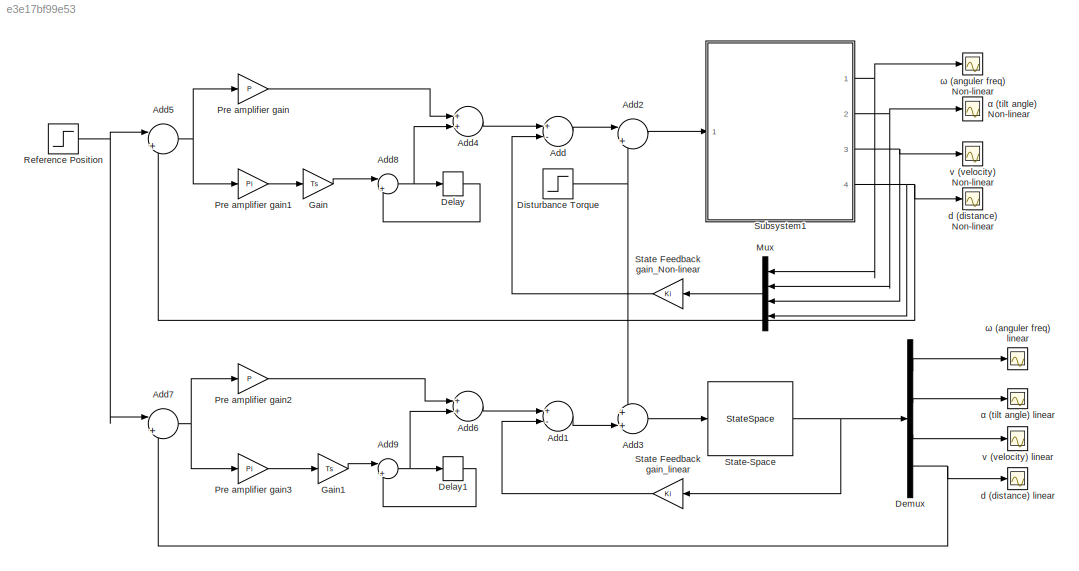
MODEL slx_e3e17bf99e53
KIND model
CONFIG AbsTol = auto
CONFIG EnableMultiTasking = off
CONFIG FixedStep = auto
CONFIG MaxStep = auto
CONFIG MinStep = auto
CONFIG RelTol = 1e-3
CONFIG SampleTimeConstraint = Unconstrained
CONFIG Solver = VariableStepAuto
CONFIG SolverName = VariableStepAuto
CONFIG StartTime = 0.0
CONFIG StopTime = 30
BLOCK [Scope]       ω (anguler freq) Non-linear
  Floating = off
  NumInputPorts = 1
  Ports = [1]
  ScopeSpecificationString = Simulink.scopes.TimeScopeBlockCfg('CurrentConfiguration', extmgr.ConfigurationSet(extmgr.Configuration('Core','General UI',true,'FigureColor',[1 1 1],'ShowMainToolbar',false,'ShowStatusbar',false),extmgr.Configuration('Core','Source UI',true),extmgr.Configuration('Sources','WiredSimulink',true,'DataLoggingVariableName','ScopeData1'),extmgr.Configuration('Visuals','Time Domain',true,'SerializedDisp...<+1618ch>
BLOCK [Sum] Add
  InputSameDT = off
  Inputs = +-
  OutDataTypeStr = Inherit: Inherit via internal rule
  Ports = [2, 1]
  SaturateOnIntegerOverflow = off
BLOCK [Sum] Add1
  InputSameDT = off
  Inputs = +-
  OutDataTypeStr = Inherit: Inherit via internal rule
  Ports = [2, 1]
  SaturateOnIntegerOverflow = off
BLOCK [Sum] Add2
  IconShape = round
  InputSameDT = off
  Inputs = |++
  OutDataTypeStr = Inherit: Inherit via internal rule
  Ports = [2, 1]
  SaturateOnIntegerOverflow = off
BLOCK [Sum] Add3
  IconShape = round
  InputSameDT = off
  Inputs = ++|
  OutDataTypeStr = Inherit: Inherit via internal rule
  Ports = [2, 1]
  SaturateOnIntegerOverflow = off
BLOCK [Sum] Add4
  InputSameDT = off
  OutDataTypeStr = Inherit: Inherit via internal rule
  Ports = [2, 1]
  SaturateOnIntegerOverflow = off
BLOCK [Sum] Add5
  IconShape = round
  InputSameDT = off
  Inputs = |+-
  OutDataTypeStr = Inherit: Inherit via internal rule
  Ports = [2, 1]
  SaturateOnIntegerOverflow = off
BLOCK [Sum] Add6
  InputSameDT = off
  OutDataTypeStr = Inherit: Inherit via internal rule
  Ports = [2, 1]
  SaturateOnIntegerOverflow = off
BLOCK [Sum] Add7
  IconShape = round
  InputSameDT = off
  Inputs = |+-
  OutDataTypeStr = Inherit: Inherit via internal rule
  Ports = [2, 1]
  SaturateOnIntegerOverflow = off
BLOCK [Sum] Add8
  IconShape = round
  InputSameDT = off
  Inputs = |++
  OutDataTypeStr = Inherit: Inherit via internal rule
  Ports = [2, 1]
  SaturateOnIntegerOverflow = off
BLOCK [Sum] Add9
  IconShape = round
  InputSameDT = off
  Inputs = |++
  OutDataTypeStr = Inherit: Inherit via internal rule
  Ports = [2, 1]
  SaturateOnIntegerOverflow = off
BLOCK [Delay] Delay
  DelayLength = 1
  InputPortMap = u0
  Ports = [1, 1]
  SampleTime = Ts
BLOCK [Delay] Delay1
  DelayLength = 1
  InputPortMap = u0
  Ports = [1, 1]
  SampleTime = Ts
BLOCK [Demux] Demux
  DisplayOption = bar
  Ports = [1, 4]
BLOCK [Step] Disturbance Torque
  After = 0.1
  SampleTime = 0
  Time = 15
BLOCK [Gain] Gain
  Gain = Ts
  OutDataTypeStr = Inherit: Inherit via internal rule
  ParamDataTypeStr = Inherit: Inherit via internal rule
  SaturateOnIntegerOverflow = off
BLOCK [Gain] Gain1
  Gain = Ts
  OutDataTypeStr = Inherit: Inherit via internal rule
  ParamDataTypeStr = Inherit: Inherit via internal rule
  SaturateOnIntegerOverflow = off
BLOCK [Mux] Mux
  DisplayOption = bar
  Ports = [4, 1]
BLOCK [Gain] Pre amplifier gain
  Gain = P
  OutDataTypeStr = Inherit: Inherit via internal rule
  ParamDataTypeStr = Inherit: Inherit via internal rule
  SaturateOnIntegerOverflow = off
BLOCK [Gain] Pre amplifier gain1
  Gain = Pi
  OutDataTypeStr = Inherit: Inherit via internal rule
  ParamDataTypeStr = Inherit: Inherit via internal rule
  SaturateOnIntegerOverflow = off
BLOCK [Gain] Pre amplifier gain2
  Gain = P
  OutDataTypeStr = Inherit: Inherit via internal rule
  ParamDataTypeStr = Inherit: Inherit via internal rule
  SaturateOnIntegerOverflow = off
BLOCK [Gain] Pre amplifier gain3
  Gain = Pi
  OutDataTypeStr = Inherit: Inherit via internal rule
  ParamDataTypeStr = Inherit: Inherit via internal rule
  SaturateOnIntegerOverflow = off
BLOCK [Step] Reference Position
  SampleTime = 0
  Time = 0
BLOCK [Gain] State Feedback gain_Non-linear
  Gain = Ki
  Multiplication = Matrix(K*u) (u vector)
  OutDataTypeStr = Inherit: Inherit via internal rule
  ParamDataTypeStr = Inherit: Inherit via internal rule
  SaturateOnIntegerOverflow = off
BLOCK [Gain] State Feedback gain_linear
  Gain = Ki
  Multiplication = Matrix(K*u) (u vector)
  OutDataTypeStr = Inherit: Inherit via internal rule
  ParamDataTypeStr = Inherit: Inherit via internal rule
  SaturateOnIntegerOverflow = off
BLOCK [StateSpace] State-Space
  A = A
  B = B
  C = C
  D = D
  InitialCondition = 0
  Ports = [1, 1]
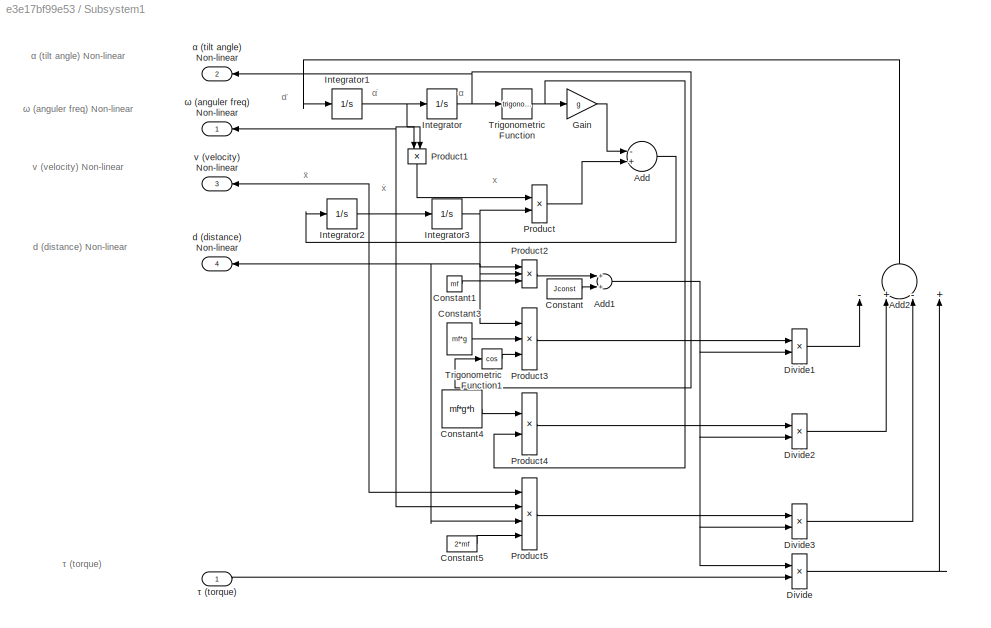
BLOCK [SubSystem] Subsystem1
  Ports = [1, 4]
  RequestExecContextInheritance = off
BLOCK [Sum] Subsystem1/Add
  InputSameDT = off
  Inputs = -+
  OutDataTypeStr = Inherit: Inherit via internal rule
  Ports = [2, 1]
  SaturateOnIntegerOverflow = off
BLOCK [Sum] Subsystem1/Add1
  InputSameDT = off
  OutDataTypeStr = Inherit: Inherit via internal rule
  Ports = [2, 1]
  SaturateOnIntegerOverflow = off
BLOCK [Sum] Subsystem1/Add2
  InputSameDT = off
  Inputs = -+-+
  OutDataTypeStr = Inherit: Inherit via internal rule
  Ports = [4, 1]
  SaturateOnIntegerOverflow = off
BLOCK [Constant] Subsystem1/Constant
  Value = Jconst
BLOCK [Constant] Subsystem1/Constant1
  Value = mf
BLOCK [Constant] Subsystem1/Constant3
  Value = mf*g
BLOCK [Constant] Subsystem1/Constant4
  Value = mf*g*h
BLOCK [Constant] Subsystem1/Constant5
  Value = 2*mf
BLOCK [Product] Subsystem1/Divide
  InputSameDT = off
  Inputs = /*
  OutDataTypeStr = Inherit: Inherit via internal rule
  Ports = [2, 1]
  RndMeth = Floor
  SaturateOnIntegerOverflow = off
BLOCK [Product] Subsystem1/Divide1
  InputSameDT = off
  Inputs = */
  OutDataTypeStr = Inherit: Inherit via internal rule
  Ports = [2, 1]
  RndMeth = Floor
  SaturateOnIntegerOverflow = off
BLOCK [Product] Subsystem1/Divide2
  InputSameDT = off
  Inputs = */
  OutDataTypeStr = Inherit: Inherit via internal rule
  Ports = [2, 1]
  RndMeth = Floor
  SaturateOnIntegerOverflow = off
BLOCK [Product] Subsystem1/Divide3
  InputSameDT = off
  Inputs = */
  OutDataTypeStr = Inherit: Inherit via internal rule
  Ports = [2, 1]
  RndMeth = Floor
  SaturateOnIntegerOverflow = off
BLOCK [Gain] Subsystem1/Gain
  Gain = g
  OutDataTypeStr = Inherit: Inherit via internal rule
  ParamDataTypeStr = Inherit: Inherit via internal rule
  SaturateOnIntegerOverflow = off
BLOCK [Integrator] Subsystem1/Integrator
  Ports = [1, 1]
BLOCK [Integrator] Subsystem1/Integrator1
  Ports = [1, 1]
BLOCK [Integrator] Subsystem1/Integrator2
  Ports = [1, 1]
BLOCK [Integrator] Subsystem1/Integrator3
  Ports = [1, 1]
BLOCK [Product] Subsystem1/Product
  InputSameDT = off
  OutDataTypeStr = Inherit: Inherit via internal rule
  Ports = [2, 1]
  RndMeth = Floor
  SaturateOnIntegerOverflow = off
BLOCK [Product] Subsystem1/Product1
  InputSameDT = off
  OutDataTypeStr = Inherit: Inherit via internal rule
  Ports = [2, 1]
  RndMeth = Floor
  SaturateOnIntegerOverflow = off
BLOCK [Product] Subsystem1/Product2
  InputSameDT = off
  Inputs = 3
  OutDataTypeStr = Inherit: Inherit via internal rule
  Ports = [3, 1]
  RndMeth = Floor
  SaturateOnIntegerOverflow = off
BLOCK [Product] Subsystem1/Product3
  InputSameDT = off
  Inputs = 3
  OutDataTypeStr = Inherit: Inherit via internal rule
  Ports = [3, 1]
  RndMeth = Floor
  SaturateOnIntegerOverflow = off
BLOCK [Product] Subsystem1/Product4
  InputSameDT = off
  OutDataTypeStr = Inherit: Inherit via internal rule
  Ports = [2, 1]
  RndMeth = Floor
  SaturateOnIntegerOverflow = off
BLOCK [Product] Subsystem1/Product5
  InputSameDT = off
  Inputs = 4
  OutDataTypeStr = Inherit: Inherit via internal rule
  Ports = [4, 1]
  RndMeth = Floor
  SaturateOnIntegerOverflow = off
BLOCK [Trigonometry] Subsystem1/Trigonometric Function
  Ports = [1, 1]
BLOCK [Trigonometry] Subsystem1/Trigonometric Function1
  Operator = cos
  Ports = [1, 1]
BLOCK [Outport] Subsystem1/d (distance) Non-linear
  IconDisplay = Port number
  Port = 4
BLOCK [Outport] Subsystem1/v (velocity) Non-linear
  IconDisplay = Port number
  Port = 3
BLOCK [Outport] Subsystem1/α (tilt angle) Non-linear
  IconDisplay = Port number
  Port = 2
BLOCK [Inport] Subsystem1/τ (torque)
  IconDisplay = Port number
BLOCK [Outport] Subsystem1/ω (anguler freq) Non-linear
  IconDisplay = Port number
BLOCK [Scope] d (distance) Non-linear
  Floating = off
  NumInputPorts = 1
  Ports = [1]
  ScopeSpecificationString = Simulink.scopes.TimeScopeBlockCfg('CurrentConfiguration', extmgr.ConfigurationSet(extmgr.Configuration('Core','General UI',true,'FigureColor',[1 1 1],'ShowMainToolbar',false,'ShowStatusbar',false),extmgr.Configuration('Core','Source UI',true),extmgr.Configuration('Sources','WiredSimulink',true,'DataLoggingVariableName','ScopeData3'),extmgr.Configuration('Visuals','Time Domain',true,'SerializedDisp...<+1611ch>
BLOCK [Scope] d (distance) linear
  Floating = off
  NumInputPorts = 1
  Ports = [1]
  ScopeSpecificationString = Simulink.scopes.TimeScopeBlockCfg('CurrentConfiguration', extmgr.ConfigurationSet(extmgr.Configuration('Core','General UI',true,'FigureColor',[1 1 1],'ShowMainToolbar',false,'ShowStatusbar',false),extmgr.Configuration('Core','Source UI',true),extmgr.Configuration('Sources','WiredSimulink',true,'DataLoggingVariableName','ScopeData2'),extmgr.Configuration('Visuals','Time Domain',true,'SerializedDisp...<+1607ch>
BLOCK [Scope] v (velocity) Non-linear
  Floating = off
  NumInputPorts = 1
  Ports = [1]
  ScopeSpecificationString = Simulink.scopes.TimeScopeBlockCfg('CurrentConfiguration', extmgr.ConfigurationSet(extmgr.Configuration('Core','General UI',true,'FigureColor',[1 1 1],'ShowMainToolbar',false,'ShowStatusbar',false),extmgr.Configuration('Core','Source UI',true),extmgr.Configuration('Sources','WiredSimulink',true,'DataLoggingVariableName','ScopeData5'),extmgr.Configuration('Visuals','Time Domain',true,'SerializedDisp...<+1616ch>
BLOCK [Scope] v (velocity) linear
  Floating = off
  NumInputPorts = 1
  Ports = [1]
  ScopeSpecificationString = Simulink.scopes.TimeScopeBlockCfg('CurrentConfiguration', extmgr.ConfigurationSet(extmgr.Configuration('Core','General UI',true,'FigureColor',[1 1 1],'ShowMainToolbar',false,'ShowStatusbar',false),extmgr.Configuration('Core','Source UI',true),extmgr.Configuration('Sources','WiredSimulink',true,'DataLoggingVariableName','ScopeData4'),extmgr.Configuration('Visuals','Time Domain',true,'SerializedDisp...<+1620ch>
BLOCK [Scope] α (tilt angle) Non-linear
  Floating = off
  NumInputPorts = 1
  Ports = [1]
  ScopeSpecificationString = Simulink.scopes.TimeScopeBlockCfg('CurrentConfiguration', extmgr.ConfigurationSet(extmgr.Configuration('Core','General UI',true,'FigureColor',[1 1 1],'ShowMainToolbar',false,'ShowStatusbar',false),extmgr.Configuration('Core','Source UI',true),extmgr.Configuration('Sources','WiredSimulink',true,'DataLoggingVariableName','ScopeData7'),extmgr.Configuration('Visuals','Time Domain',true,'SerializedDisp...<+1655ch>
BLOCK [Scope] α (tilt angle) linear
  Floating = off
  NumInputPorts = 1
  Ports = [1]
  ScopeSpecificationString = Simulink.scopes.TimeScopeBlockCfg('CurrentConfiguration', extmgr.ConfigurationSet(extmgr.Configuration('Core','General UI',true,'FigureColor',[1 1 1],'ShowMainToolbar',false,'ShowStatusbar',false),extmgr.Configuration('Core','Source UI',true),extmgr.Configuration('Sources','WiredSimulink',true,'DataLoggingVariableName','ScopeData6'),extmgr.Configuration('Visuals','Time Domain',true,'SerializedDisp...<+1661ch>
BLOCK [Scope] ω (anguler freq) linear
  Floating = off
  NumInputPorts = 1
  Ports = [1]
  ScopeSpecificationString = Simulink.scopes.TimeScopeBlockCfg('CurrentConfiguration', extmgr.ConfigurationSet(extmgr.Configuration('Core','General UI',true,'FigureColor',[1 1 1],'ShowMainToolbar',false,'ShowStatusbar',false),extmgr.Configuration('Core','Source UI',true),extmgr.Configuration('Sources','WiredSimulink',true),extmgr.Configuration('Visuals','Time Domain',true,'SerializedDisplays',{struct('MinYLimReal','-8.12595',...<+1580ch>
ANNOTATION Subsystem1: α
ANNOTATION Subsystem1: α̇
ANNOTATION Subsystem1: α̈
ANNOTATION Subsystem1: τ (t orque)
ANNOTATION Subsystem1: α (tilt angle) Non-linear
ANNOTATION Subsystem1: ω (anguler freq) Non-linear
ANNOTATION Subsystem1: ẋ
ANNOTATION Subsystem1: ẍ
ANNOTATION Subsystem1: d (distance) Non-linear
ANNOTATION Subsystem1: v (velocity) Non-linear
ANNOTATION Subsystem1: x
LINE Add1:1 -> Add3:2
LINE Add2:1 -> Subsystem1:1
LINE Add3:1 -> State-Space:1
LINE Add4:1 -> Add:1
NET Add5:1 -> Pre amplifier gain1:1, Pre amplifier gain:1
LINE Add6:1 -> Add1:1
NET Add7:1 -> Pre amplifier gain2:1, Pre amplifier gain3:1
NET Add8:1 -> Add4:2, Delay:1
NET Add9:1 -> Add6:2, Delay1:1
LINE Add:1 -> Add2:1
LINE Delay1:1 -> Add9:2
LINE Delay:1 -> Add8:2
LINE Demux:1 -> ω (anguler freq) linear:1
LINE Demux:2 -> α (tilt angle) linear:1
LINE Demux:3 -> v (velocity) linear:1
NET Demux:4 -> Add7:2, d (distance) linear:1
NET Disturbance Torque:1 -> Add2:2, Add3:1
LINE Gain1:1 -> Add9:1
LINE Gain:1 -> Add8:1
LINE Mux:1 -> State Feedback gain_Non-linear:1
LINE Pre amplifier gain1:1 -> Gain:1
LINE Pre amplifier gain2:1 -> Add6:1
LINE Pre amplifier gain3:1 -> Gain1:1
LINE Pre amplifier gain:1 -> Add4:1
NET Reference Position:1 -> Add5:1, Add7:1
LINE State Feedback gain_Non-linear:1 -> Add:2
LINE State Feedback gain_linear:1 -> Add1:2
NET State-Space:1 -> Demux:1, State Feedback gain_linear:1
NET Subsystem1/Add1:1 -> Subsystem1/Divide1:2, Subsystem1/Divide2:2, Subsystem1/Divide3:2, Subsystem1/Divide:1
LINE Subsystem1/Add2:1 -> Subsystem1/Integrator1:1
LINE Subsystem1/Add:1 -> Subsystem1/Integrator2:1
LINE Subsystem1/Constant1:1 -> Subsystem1/Product2:3
LINE Subsystem1/Constant3:1 -> Subsystem1/Product3:2
LINE Subsystem1/Constant4:1 -> Subsystem1/Product4:1
LINE Subsystem1/Constant5:1 -> Subsystem1/Product5:4
LINE Subsystem1/Constant:1 -> Subsystem1/Add1:2
LINE Subsystem1/Divide1:1 -> Subsystem1/Add2:1
LINE Subsystem1/Divide2:1 -> Subsystem1/Add2:2
LINE Subsystem1/Divide3:1 -> Subsystem1/Add2:3
LINE Subsystem1/Divide:1 -> Subsystem1/Add2:4
LINE Subsystem1/Gain:1 -> Subsystem1/Add:1
NET Subsystem1/Integrator1:1 -> Subsystem1/Integrator:1, Subsystem1/Product1:1, Subsystem1/Product1:2, Subsystem1/Product5:2, Subsystem1/ω (anguler freq) Non-linear:1
NET Subsystem1/Integrator2:1 -> Subsystem1/Integrator3:1, Subsystem1/Product5:1, Subsystem1/v (velocity) Non-linear:1
NET Subsystem1/Integrator3:1 -> Subsystem1/Product2:1, Subsystem1/Product2:2, Subsystem1/Product3:1, Subsystem1/Product5:3, Subsystem1/Product:2, Subsystem1/d (distance) Non-linear:1
NET Subsystem1/Integrator:1 -> Subsystem1/Trigonometric Function1:1, Subsystem1/Trigonometric Function:1, Subsystem1/α (tilt angle) Non-linear:1
LINE Subsystem1/Product1:1 -> Subsystem1/Product:1
LINE Subsystem1/Product2:1 -> Subsystem1/Add1:1
LINE Subsystem1/Product3:1 -> Subsystem1/Divide1:1
LINE Subsystem1/Product4:1 -> Subsystem1/Divide2:1
LINE Subsystem1/Product5:1 -> Subsystem1/Divide3:1
LINE Subsystem1/Product:1 -> Subsystem1/Add:2
LINE Subsystem1/Trigonometric Function1:1 -> Subsystem1/Product3:3
NET Subsystem1/Trigonometric Function:1 -> Subsystem1/Gain:1, Subsystem1/Product4:2
LINE Subsystem1/τ (torque):1 -> Subsystem1/Divide:2
NET Subsystem1:1 ->       ω (anguler freq) Non-linear:1, Mux:1
NET Subsystem1:2 -> Mux:2, α (tilt angle) Non-linear:1
NET Subsystem1:3 -> Mux:3, v (velocity) Non-linear:1
NET Subsystem1:4 -> Add5:2, Mux:4, d (distance) Non-linear:1
note: NET lines group one-source signal fan-out (src -> all destinations, sorted); 1:1 wires keep LINE
